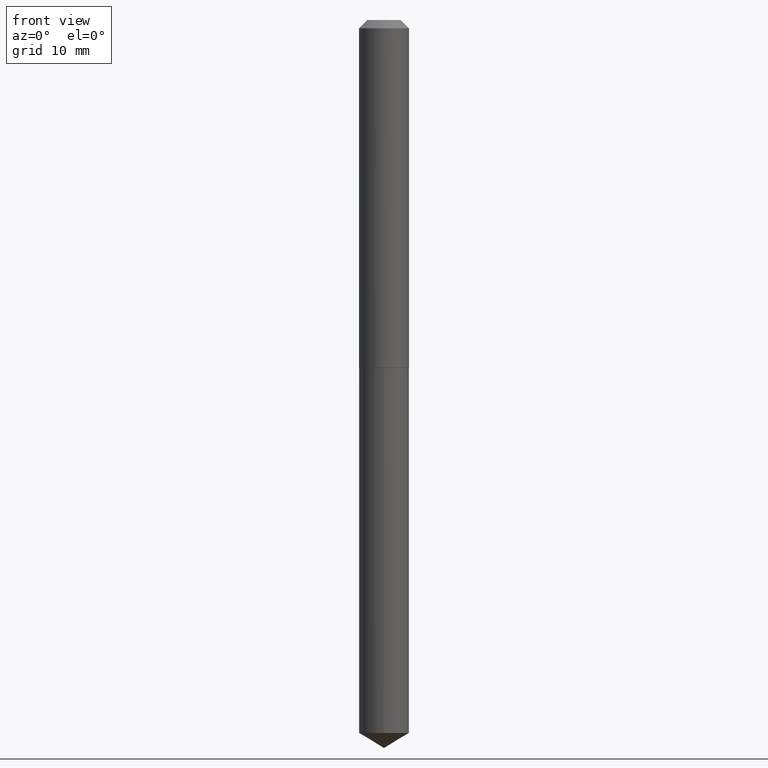
[diagram: clean part render]
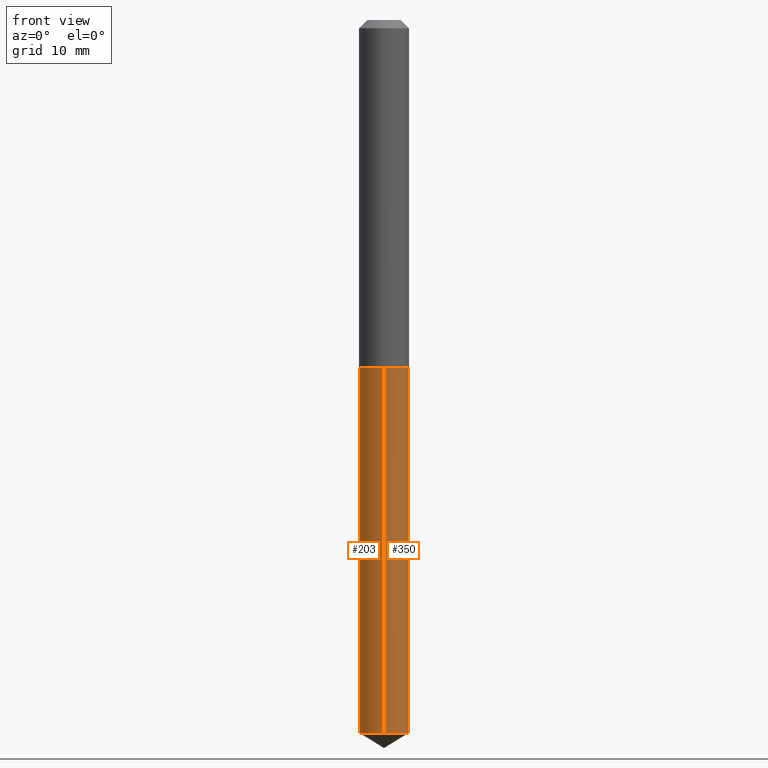
[diagram: same view with one multi-face feature highlighted, each face labeled with its STEP entity id]
A machine part, front view. The highlighted faces form ONE feature: a constant-radius fillet chain: 2 tangent blend faces with common blend radius 2.4003 mm. The faces share edges in the B-rep.
Their STEP definitions:
[1] entity #350 (Cylinder):
#2 = DIRECTION ( 'NONE',  ( -2.445534147600870252E-29, 3.491387766216812550E-15, 1.000000000000000000 ) ) ;
#13 = ORIENTED_EDGE ( 'NONE', *, *, #218, .T. ) ;
#29 = CIRCLE ( 'NONE', #130, 0.09449999999999998679 ) ;
#35 = CARTESIAN_POINT ( 'NONE',  ( -6.598899730413198687E-16, -0.09450000000000458034, -1.313999999999999613 ) ) ;
#41 = EDGE_CURVE ( 'NONE', #46, #385, #220, .T. ) ;
#45 = EDGE_CURVE ( 'NONE', #385, #346, #301, .T. ) ;
#46 = VERTEX_POINT ( 'NONE', #169 ) ;
#47 = VECTOR ( 'NONE', #119, 39.37007874015748143 ) ;
#54 = CARTESIAN_POINT ( 'NONE',  ( -6.598899730413198687E-16, -0.09450000000000458034, -1.313999999999999613 ) ) ;
#55 = VECTOR ( 'NONE', #349, 39.37007874015748143 ) ;
#62 = DIRECTION ( 'NONE',  ( -6.982962677686265922E-15, -1.000000000000000000, 2.890844437739961472E-15 ) ) ;
#78 = ORIENTED_EDGE ( 'NONE', *, *, #45, .F. ) ;
#92 = DIRECTION ( 'NONE',  ( -2.445534147600870252E-29, 3.491387766216812550E-15, 1.000000000000000000 ) ) ;
#110 = ORIENTED_EDGE ( 'NONE', *, *, #41, .F. ) ;
#116 = FACE_OUTER_BOUND ( 'NONE', #216, .T. ) ;
#119 = DIRECTION ( 'NONE',  ( -2.445534147600870252E-29, 3.491387766216812156E-15, 1.000000000000000000 ) ) ;
#121 = CARTESIAN_POINT ( 'NONE',  ( 6.714628852933602544E-16, 0.09449999999999056377, -2.693218671501896200 ) ) ;
#125 = CARTESIAN_POINT ( 'NONE',  ( 6.586272369493861855E-29, -9.403193675859416416E-15, -2.693218671501895756 ) ) ;
#130 = AXIS2_PLACEMENT_3D ( 'NONE', #125, #2, #361 ) ;
#135 = VERTEX_POINT ( 'NONE', #121 ) ;
#169 = CARTESIAN_POINT ( 'NONE',  ( -6.598899730412861449E-16, -0.09450000000000939593, -2.693218671501894868 ) ) ;
#172 = EDGE_CURVE ( 'NONE', #135, #346, #288, .T. ) ;
#173 = DIRECTION ( 'NONE',  ( -6.982962677686265922E-15, -1.000000000000000000, 2.890844437739961472E-15 ) ) ;
#200 = DIRECTION ( 'NONE',  ( -2.445534147600870252E-29, 3.491387766216812550E-15, 1.000000000000000000 ) ) ;
#216 = EDGE_LOOP ( 'NONE', ( #13, #285, #78, #110 ) ) ;
#218 = EDGE_CURVE ( 'NONE', #46, #135, #29, .T. ) ;
#220 = LINE ( 'NONE', #54, #55 ) ;
#222 = CARTESIAN_POINT ( 'NONE',  ( 3.213346011327269067E-29, -4.587806479239893606E-15, -1.314000000000000057 ) ) ;
#231 = CYLINDRICAL_SURFACE ( 'NONE', #331, 0.09449999999999998679 ) ;
#237 = AXIS2_PLACEMENT_3D ( 'NONE', #222, #200, #173 ) ;
#285 = ORIENTED_EDGE ( 'NONE', *, *, #172, .T. ) ;
#288 = LINE ( 'NONE', #321, #47 ) ;
#300 = CARTESIAN_POINT ( 'NONE',  ( 6.714628852933606489E-16, 0.09449999999999539324, -1.314000000000000279 ) ) ;
#301 = CIRCLE ( 'NONE', #237, 0.09449999999999998679 ) ;
#321 = CARTESIAN_POINT ( 'NONE',  ( 6.714628852933266292E-16, 0.09449999999999539324, -1.314000000000000279 ) ) ;
#331 = AXIS2_PLACEMENT_3D ( 'NONE', #352, #92, #62 ) ;
#346 = VERTEX_POINT ( 'NONE', #300 ) ;
#349 = DIRECTION ( 'NONE',  ( -2.445534147600870252E-29, 3.491387766216812156E-15, 1.000000000000000000 ) ) ;
#350 = ADVANCED_FACE ( 'NONE', ( #116 ), #231, .T. ) ;
#352 = CARTESIAN_POINT ( 'NONE',  ( 3.213346011327269067E-29, -4.587806479239893606E-15, -1.314000000000000057 ) ) ;
#361 = DIRECTION ( 'NONE',  ( -6.982962677686265922E-15, -1.000000000000000000, 5.781688875479922944E-15 ) ) ;
#385 = VERTEX_POINT ( 'NONE', #35 ) ;
[2] entity #203 (Cylinder):
#4 = EDGE_CURVE ( 'NONE', #346, #385, #99, .T. ) ;
#25 = CARTESIAN_POINT ( 'NONE',  ( 6.586272369493861855E-29, -9.403193675859416416E-15, -2.693218671501895756 ) ) ;
#35 = CARTESIAN_POINT ( 'NONE',  ( -6.598899730413198687E-16, -0.09450000000000458034, -1.313999999999999613 ) ) ;
#40 = ORIENTED_EDGE ( 'NONE', *, *, #41, .T. ) ;
#41 = EDGE_CURVE ( 'NONE', #46, #385, #220, .T. ) ;
#46 = VERTEX_POINT ( 'NONE', #169 ) ;
#47 = VECTOR ( 'NONE', #119, 39.37007874015748143 ) ;
#50 = DIRECTION ( 'NONE',  ( -6.982962677686265922E-15, -1.000000000000000000, 2.890844437739961472E-15 ) ) ;
#54 = CARTESIAN_POINT ( 'NONE',  ( -6.598899730413198687E-16, -0.09450000000000458034, -1.313999999999999613 ) ) ;
#55 = VECTOR ( 'NONE', #349, 39.37007874015748143 ) ;
#90 = CIRCLE ( 'NONE', #137, 0.09449999999999998679 ) ;
#97 = AXIS2_PLACEMENT_3D ( 'NONE', #221, #145, #50 ) ;
#99 = CIRCLE ( 'NONE', #150, 0.09449999999999998679 ) ;
#109 = EDGE_CURVE ( 'NONE', #135, #46, #90, .T. ) ;
#111 = CARTESIAN_POINT ( 'NONE',  ( 3.213346011327269067E-29, -4.587806479239893606E-15, -1.314000000000000057 ) ) ;
#118 = ORIENTED_EDGE ( 'NONE', *, *, #4, .F. ) ;
#119 = DIRECTION ( 'NONE',  ( -2.445534147600870252E-29, 3.491387766216812156E-15, 1.000000000000000000 ) ) ;
#121 = CARTESIAN_POINT ( 'NONE',  ( 6.714628852933602544E-16, 0.09449999999999056377, -2.693218671501896200 ) ) ;
#133 = ORIENTED_EDGE ( 'NONE', *, *, #109, .T. ) ;
#135 = VERTEX_POINT ( 'NONE', #121 ) ;
#137 = AXIS2_PLACEMENT_3D ( 'NONE', #25, #294, #147 ) ;
#145 = DIRECTION ( 'NONE',  ( -2.445534147600870252E-29, 3.491387766216812550E-15, 1.000000000000000000 ) ) ;
#147 = DIRECTION ( 'NONE',  ( -6.982962677686265922E-15, -1.000000000000000000, 5.781688875479922944E-15 ) ) ;
#150 = AXIS2_PLACEMENT_3D ( 'NONE', #111, #353, #165 ) ;
#165 = DIRECTION ( 'NONE',  ( -6.982962677686265922E-15, -1.000000000000000000, 2.890844437739961472E-15 ) ) ;
#169 = CARTESIAN_POINT ( 'NONE',  ( -6.598899730412861449E-16, -0.09450000000000939593, -2.693218671501894868 ) ) ;
#172 = EDGE_CURVE ( 'NONE', #135, #346, #288, .T. ) ;
#203 = ADVANCED_FACE ( 'NONE', ( #377 ), #265, .T. ) ;
#220 = LINE ( 'NONE', #54, #55 ) ;
#221 = CARTESIAN_POINT ( 'NONE',  ( 3.213346011327269067E-29, -4.587806479239893606E-15, -1.314000000000000057 ) ) ;
#264 = EDGE_LOOP ( 'NONE', ( #276, #133, #40, #118 ) ) ;
#265 = CYLINDRICAL_SURFACE ( 'NONE', #97, 0.09449999999999998679 ) ;
#276 = ORIENTED_EDGE ( 'NONE', *, *, #172, .F. ) ;
#288 = LINE ( 'NONE', #321, #47 ) ;
#294 = DIRECTION ( 'NONE',  ( -2.445534147600870252E-29, 3.491387766216812550E-15, 1.000000000000000000 ) ) ;
#300 = CARTESIAN_POINT ( 'NONE',  ( 6.714628852933606489E-16, 0.09449999999999539324, -1.314000000000000279 ) ) ;
#321 = CARTESIAN_POINT ( 'NONE',  ( 6.714628852933266292E-16, 0.09449999999999539324, -1.314000000000000279 ) ) ;
#346 = VERTEX_POINT ( 'NONE', #300 ) ;
#349 = DIRECTION ( 'NONE',  ( -2.445534147600870252E-29, 3.491387766216812156E-15, 1.000000000000000000 ) ) ;
#353 = DIRECTION ( 'NONE',  ( -2.445534147600870252E-29, 3.491387766216812550E-15, 1.000000000000000000 ) ) ;
#377 = FACE_OUTER_BOUND ( 'NONE', #264, .T. ) ;
#385 = VERTEX_POINT ( 'NONE', #35 ) ;